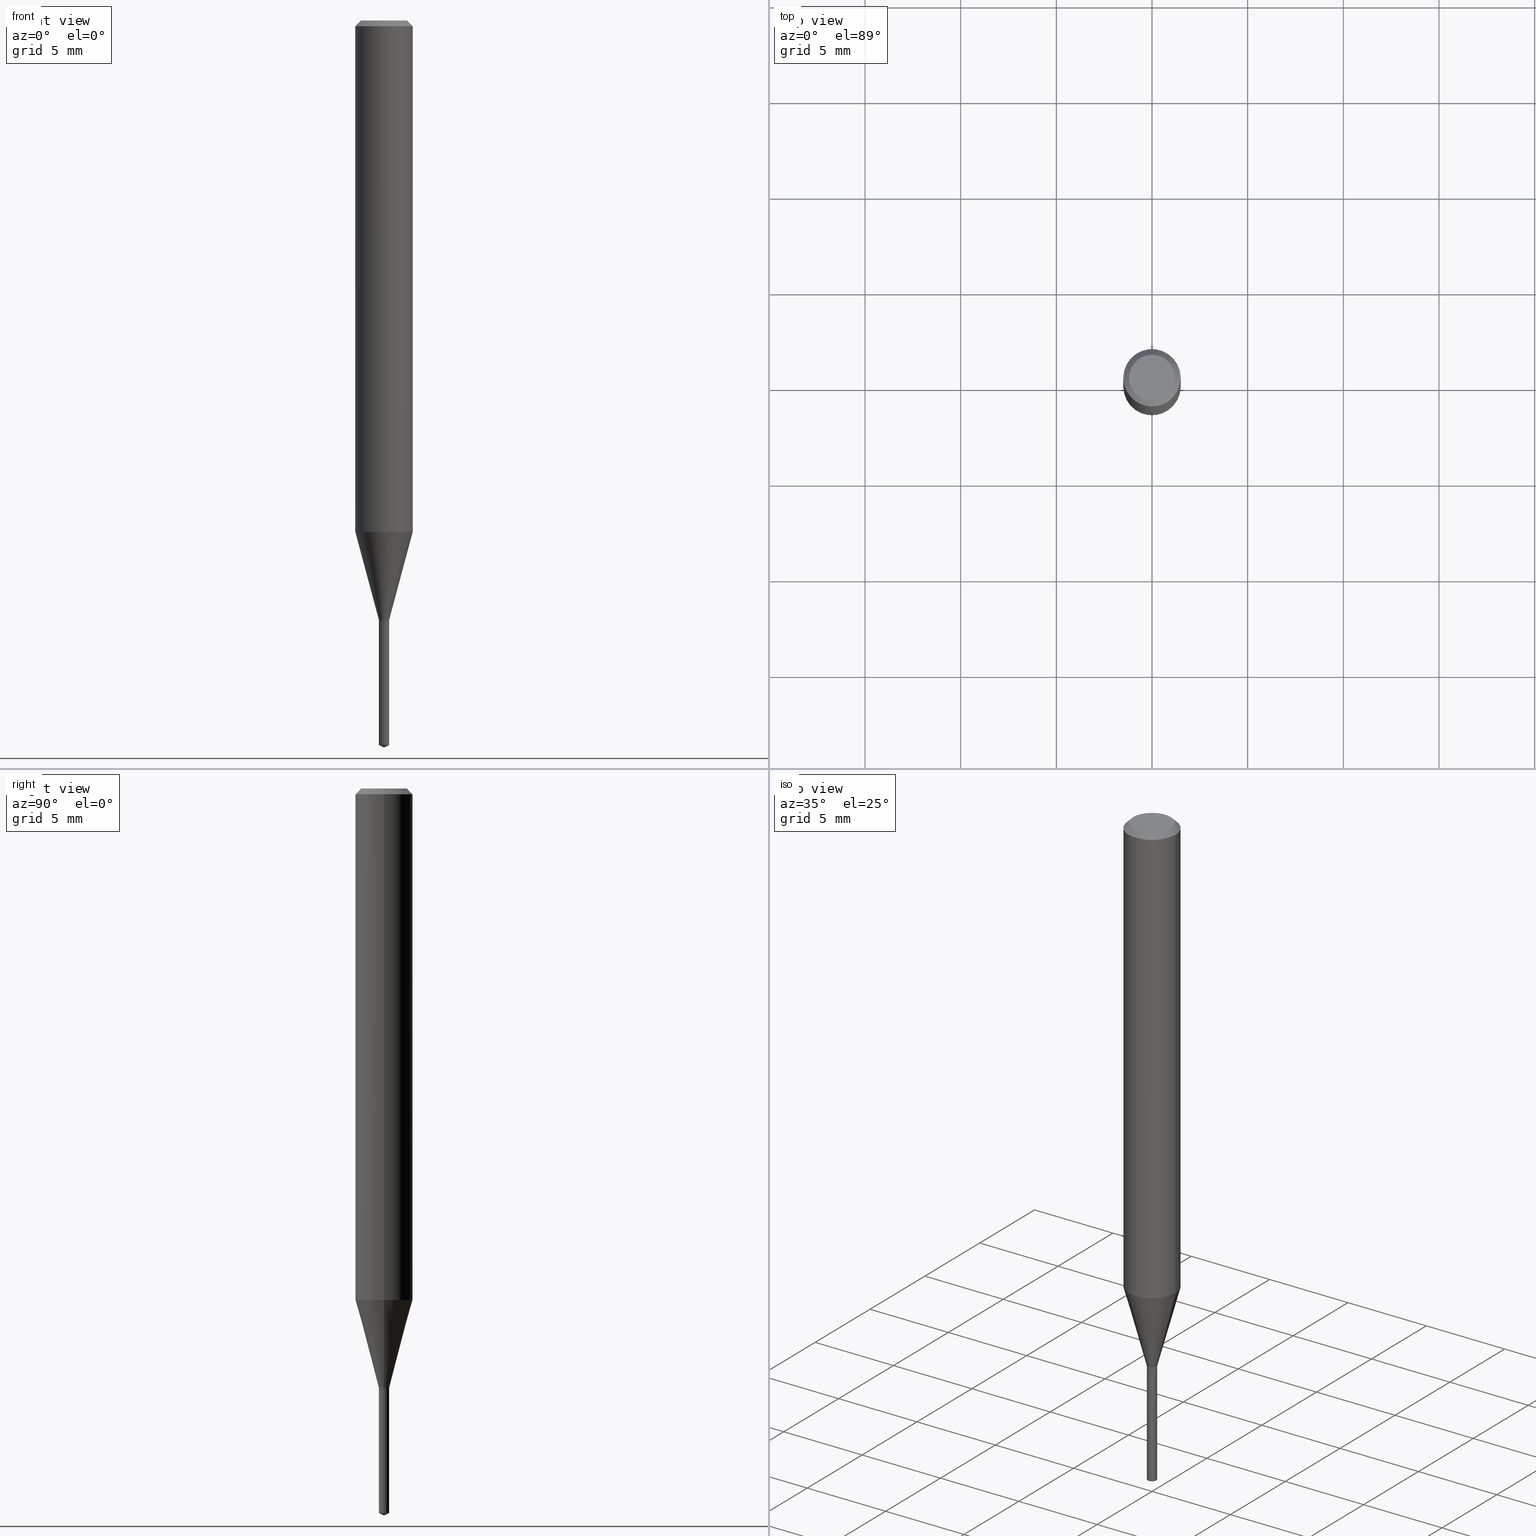
[diagram: canonical four-view strip — front | top / right | iso, engineering-drawing reading convention]
A machine part, canonical four-view strip (front | top / right | iso — engineering-drawing reading convention). The complete STEP part file that produces these views, byte-faithful:
ISO-10303-21;
HEADER;
FILE_DESCRIPTION (( 'STEP AP203' ),
    '1' );
FILE_NAME ('08095.STEP',
    '2024-04-24T11:20:14',
    ( '' ),
    ( '' ),
    'SwSTEP 2.0',
    'SolidWorks 2023',
    '' );
FILE_SCHEMA (( 'CONFIG_CONTROL_DESIGN' ));
ENDSEC;

DATA;
#1 = AXIS2_PLACEMENT_3D ( 'NONE', #56, #165, #210 ) ;
#2 = LINE ( 'NONE', #223, #204 ) ;
#3 = AXIS2_PLACEMENT_3D ( 'NONE', #188, #300, #35 ) ;
#4 = FACE_OUTER_BOUND ( 'NONE', #167, .T. ) ;
#5 = ORIENTED_EDGE ( 'NONE', *, *, #156, .F. ) ;
#6 = DIRECTION ( 'NONE',  ( -1.000000000000000000, 6.982962677686266711E-15, 0.000000000000000000 ) ) ;
#7 = ORIENTED_EDGE ( 'NONE', *, *, #76, .T. ) ;
#8 = FACE_OUTER_BOUND ( 'NONE', #371, .T. ) ;
#9 = VERTEX_POINT ( 'NONE', #342 ) ;
#10 = DIRECTION ( 'NONE',  ( -2.445468806185136877E-29, 3.491481338843145188E-15, 1.000000000000000000 ) ) ;
#11 = ORIENTED_EDGE ( 'NONE', *, *, #384, .T. ) ;
#12 = VERTEX_POINT ( 'NONE', #235 ) ;
#13 = LENGTH_MEASURE_WITH_UNIT ( LENGTH_MEASURE( 0.02539999999999999897 ), #455 );
#14 = EDGE_CURVE ( 'NONE', #134, #233, #60, .T. ) ;
#15 = CARTESIAN_POINT ( 'NONE',  ( 0.000000000000000000, 0.000000000000000000, 0.000000000000000000 ) ) ;
#16 = PERSON_AND_ORGANIZATION_ROLE ( 'design_owner' ) ;
#17 = CC_DESIGN_DATE_AND_TIME_ASSIGNMENT ( #86, #383, ( #387 ) ) ;
#18 = AXIS2_PLACEMENT_3D ( 'NONE', #102, #483, #427 ) ;
#19 = LOCAL_TIME ( 7, 20, 14.00000000000000000, #328 ) ;
#20 = PLANE ( 'NONE',  #356 ) ;
#21 = CARTESIAN_POINT ( 'NONE',  ( -0.01065000000000000148, -4.234386337376470725E-15, -1.235800000000000010 ) ) ;
#22 = CARTESIAN_POINT ( 'NONE',  ( 4.132873053354867254E-48, -5.900647395337818946E-34, -1.690012582823346072E-19 ) ) ;
#23 = LINE ( 'NONE', #398, #284 ) ;
#24 = AXIS2_PLACEMENT_3D ( 'NONE', #318, #315, #131 ) ;
#25 = CARTESIAN_POINT ( 'NONE',  ( 3.023333085086683703E-29, -4.316518379211780118E-15, -1.236299999999999955 ) ) ;
#26 = EDGE_CURVE ( 'NONE', #141, #9, #334, .T. ) ;
#27 = CARTESIAN_POINT ( 'NONE',  ( 3.015507584906892128E-29, -4.305345638927483284E-15, -1.233100000000000085 ) ) ;
#28 = DIRECTION ( 'NONE',  ( -2.445468806185136597E-29, 3.491481338843145583E-15, 1.000000000000000000 ) ) ;
#29 = VERTEX_POINT ( 'NONE', #345 ) ;
#30 = AXIS2_PLACEMENT_3D ( 'NONE', #424, #305, #381 ) ;
#31 = ORIENTED_EDGE ( 'NONE', *, *, #217, .T. ) ;
#32 = CC_DESIGN_APPROVAL ( #449, ( #387 ) ) ;
#33 = DIRECTION ( 'NONE',  ( -2.438088387897960049E-29, 3.491481338843145188E-15, 1.000000000000000000 ) ) ;
#34 = ADVANCED_FACE ( 'NONE', ( #308 ), #453, .T. ) ;
#35 = DIRECTION ( 'NONE',  ( 1.000000000000000000, -6.982962677686266711E-15, 4.876176775795936353E-29 ) ) ;
#36 = ORIENTED_EDGE ( 'NONE', *, *, #220, .F. ) ;
#37 = ORIENTED_EDGE ( 'NONE', *, *, #164, .F. ) ;
#38 = CIRCLE ( 'NONE', #151, 0.01065000000000000148 ) ;
#39 = CARTESIAN_POINT ( 'NONE',  ( -7.436855251732226660E-17, -0.01065000000000520565, -1.491133823440649264 ) ) ;
#40 = CONICAL_SURFACE ( 'NONE', #379, 84.42940631927372408, 1.134464013796313120 ) ;
#41 = EDGE_CURVE ( 'NONE', #466, #12, #248, .T. ) ;
#42 = EDGE_LOOP ( 'NONE', ( #47, #31 ) ) ;
#43 = CARTESIAN_POINT ( 'NONE',  ( 3.023333085086684824E-29, -4.316518379211781696E-15, -1.236300000000000177 ) ) ;
#44 = DIRECTION ( 'NONE',  ( 1.000000000000000000, -6.982962677686291165E-15, 0.000000000000000000 ) ) ;
#45 = ORIENTED_EDGE ( 'NONE', *, *, #61, .F. ) ;
#46 = PERSON_AND_ORGANIZATION ( #488, #268 ) ;
#47 = ORIENTED_EDGE ( 'NONE', *, *, #220, .T. ) ;
#48 = DATE_TIME_ROLE ( 'creation_date' ) ;
#49 = VECTOR ( 'NONE', #415, 39.37007874015748143 ) ;
#50 = AXIS2_PLACEMENT_3D ( 'NONE', #470, #179, #326 ) ;
#51 = CC_DESIGN_APPROVAL ( #57, ( #481 ) ) ;
#52 = ORIENTED_EDGE ( 'NONE', *, *, #292, .F. ) ;
#53 = ORIENTED_EDGE ( 'NONE', *, *, #61, .T. ) ;
#54 = COORDINATED_UNIVERSAL_TIME_OFFSET ( 5, 0, .BEHIND. ) ;
#55 = PRODUCT ( '08095', '08095', '', ( #317 ) ) ;
#56 = CARTESIAN_POINT ( 'NONE',  ( 2.888098660104664204E-31, -4.123439461173780263E-17, -0.01181000000000007218 ) ) ;
#57 = APPROVAL ( #173, 'UNSPECIFIED' ) ;
#58 = CARTESIAN_POINT ( 'NONE',  ( 8.265746106709734507E-48, -1.180129479067563789E-33, -3.380025165646692144E-19 ) ) ;
#59 = PERSON_AND_ORGANIZATION ( #488, #268 ) ;
#60 = CIRCLE ( 'NONE', #274, 0.01065000000000000148 ) ;
#61 = EDGE_CURVE ( 'NONE', #446, #304, #163, .T. ) ;
#62 = AXIS2_PLACEMENT_3D ( 'NONE', #302, #196, #6 ) ;
#63 = CIRCLE ( 'NONE', #311, 0.01065000000000000148 ) ;
#64 = CARTESIAN_POINT ( 'NONE',  ( -9.261903463803131862E-28, 1.322371477110797904E-13, 37.87397874015748300 ) ) ;
#65 = SHAPE_DEFINITION_REPRESENTATION ( #259, #401 ) ;
#66 = EDGE_CURVE ( 'NONE', #9, #446, #199, .T. ) ;
#67 = CARTESIAN_POINT ( 'NONE',  ( 0.05905000000000013710, -4.087018914733182881E-15, -1.052468740913666378 ) ) ;
#68 = DIRECTION ( 'NONE',  ( 2.438088387897960049E-29, -3.491481338843145188E-15, -1.000000000000000000 ) ) ;
#69 = DATE_AND_TIME ( #103, #19 ) ;
#70 = CIRCLE ( 'NONE', #104, 0.01065000000000000148 ) ;
#71 = AXIS2_PLACEMENT_3D ( 'NONE', #344, #437, #457 ) ;
#72 = DIRECTION ( 'NONE',  ( -6.982962677686265922E-15, -1.000000000000000000, 0.000000000000000000 ) ) ;
#73 = CC_DESIGN_PERSON_AND_ORGANIZATION_ASSIGNMENT ( #390, #460, ( #481 ) ) ;
#74 = ADVANCED_FACE ( 'NONE', ( #87 ), #20, .F. ) ;
#75 = CARTESIAN_POINT ( 'NONE',  ( -0.05904999999999999832, -1.438379196147432366E-15, -0.01181000000000007218 ) ) ;
#76 = EDGE_CURVE ( 'NONE', #313, #442, #23, .T. ) ;
#77 = AXIS2_PLACEMENT_3D ( 'NONE', #158, #312, #276 ) ;
#78 = ADVANCED_FACE ( 'NONE', ( #395 ), #443, .T. ) ;
#79 = CARTESIAN_POINT ( 'NONE',  ( -0.05904999999999999832, 3.711095515056362547E-16, -0.01181000000000007218 ) ) ;
#80 = EDGE_LOOP ( 'NONE', ( #11, #261, #45, #263 ) ) ;
#81 = DIRECTION ( 'NONE',  ( 6.982962677686265922E-15, 1.000000000000000000, -3.491503269448233447E-15 ) ) ;
#82 = VERTEX_POINT ( 'NONE', #99 ) ;
#83 = DIRECTION ( 'NONE',  ( -0.2588190451025213501, 5.211531920934551042E-15, 0.9659258262890682012 ) ) ;
#84 = VECTOR ( 'NONE', #396, 39.37007874015748143 ) ;
#85 = ORIENTED_EDGE ( 'NONE', *, *, #217, .F. ) ;
#86 = DATE_AND_TIME ( #162, #374 ) ;
#87 = FACE_OUTER_BOUND ( 'NONE', #42, .T. ) ;
#88 = EDGE_LOOP ( 'NONE', ( #5, #265, #382, #321 ) ) ;
#89 = ORIENTED_EDGE ( 'NONE', *, *, #452, .T. ) ;
#90 = APPROVAL_DATE_TIME ( #169, #57 ) ;
#91 = CONICAL_SURFACE ( 'NONE', #368, 0.01015000000000000104, 0.7853981633972754173 ) ;
#92 = DIRECTION ( 'NONE',  ( -2.445468806185136597E-29, 3.491481338843145583E-15, 1.000000000000000000 ) ) ;
#93 = DIRECTION ( 'NONE',  ( -2.445453492125453683E-29, 3.491503269448233447E-15, 1.000000000000000000 ) ) ;
#94 = ORIENTED_EDGE ( 'NONE', *, *, #459, .F. ) ;
#95 = DIRECTION ( 'NONE',  ( -2.445453492125453683E-29, 3.491503269448233447E-15, 1.000000000000000000 ) ) ;
#96 = COORDINATED_UNIVERSAL_TIME_OFFSET ( 5, 0, .BEHIND. ) ;
#97 = DIRECTION ( 'NONE',  ( -6.982962677686265922E-15, -1.000000000000000000, 0.000000000000000000 ) ) ;
#98 = AXIS2_PLACEMENT_3D ( 'NONE', #15, #255, #172 ) ;
#99 = CARTESIAN_POINT ( 'NONE',  ( 0.04724000000000000421, -3.852183633974369345E-16, -3.380025165621689721E-19 ) ) ;
#100 = PRODUCT_RELATED_PRODUCT_CATEGORY ( 'detail', '', ( #55 ) ) ;
#101 = CARTESIAN_POINT ( 'NONE',  ( 2.573779475389317461E-29, -3.674674968615807172E-15, -1.052468740913666378 ) ) ;
#102 = CARTESIAN_POINT ( 'NONE',  ( 0.000000000000000000, 0.000000000000000000, 0.000000000000000000 ) ) ;
#103 = CALENDAR_DATE ( 2024, 24, 4 ) ;
#104 = AXIS2_PLACEMENT_3D ( 'NONE', #323, #361, #97 ) ;
#105 = VECTOR ( 'NONE', #218, 39.37007874015748143 ) ;
#106 = CC_DESIGN_PERSON_AND_ORGANIZATION_ASSIGNMENT ( #471, #142, ( #422 ) ) ;
#107 = ORIENTED_EDGE ( 'NONE', *, *, #14, .T. ) ;
#108 = DIRECTION ( 'NONE',  ( -2.445468806185136877E-29, 3.491481338843145188E-15, 1.000000000000000000 ) ) ;
#109 = ORIENTED_EDGE ( 'NONE', *, *, #421, .T. ) ;
#110 = ADVANCED_FACE ( 'NONE', ( #433 ), #177, .T. ) ;
#111 = FACE_OUTER_BOUND ( 'NONE', #231, .T. ) ;
#112 = CARTESIAN_POINT ( 'NONE',  ( -2.021227691267602358E-28, -3.759123438479924285E-14, -1.236300000000000177 ) ) ;
#113 = APPLICATION_CONTEXT ( 'configuration controlled 3d designs of mechanical parts and assemblies' ) ;
#114 = AXIS2_PLACEMENT_3D ( 'NONE', #58, #397, #331 ) ;
#115 = ORIENTED_EDGE ( 'NONE', *, *, #464, .T. ) ;
#116 = CARTESIAN_POINT ( 'NONE',  ( 0.000000000000000000, 0.000000000000000000, 0.000000000000000000 ) ) ;
#117 = EDGE_CURVE ( 'NONE', #442, #408, #70, .T. ) ;
#118 = ORIENTED_EDGE ( 'NONE', *, *, #76, .F. ) ;
#119 = PLANE ( 'NONE',  #394 ) ;
#120 = UNCERTAINTY_MEASURE_WITH_UNIT (LENGTH_MEASURE( 1.000000000000000082E-05 ), #288, 'distance_accuracy_value', 'NONE');
#121 = VERTEX_POINT ( 'NONE', #216 ) ;
#122 = VECTOR ( 'NONE', #10, 39.37007874015748143 ) ;
#123 = ORIENTED_EDGE ( 'NONE', *, *, #364, .T. ) ;
#124 = AXIS2_PLACEMENT_3D ( 'NONE', #234, #463, #240 ) ;
#125 = DIRECTION ( 'NONE',  ( -2.445468806185136597E-29, 3.491481338843145583E-15, 1.000000000000000000 ) ) ;
#126 = CARTESIAN_POINT ( 'NONE',  ( 3.015507584906892128E-29, -4.305345638927483284E-15, -1.233100000000000085 ) ) ;
#127 =( NAMED_UNIT ( * ) SI_UNIT ( $, .STERADIAN. ) SOLID_ANGLE_UNIT ( ) );
#128 = EDGE_LOOP ( 'NONE', ( #462, #7, #270 ) ) ;
#129 = ORIENTED_EDGE ( 'NONE', *, *, #26, .F. ) ;
#130 = CALENDAR_DATE ( 2024, 24, 4 ) ;
#131 = DIRECTION ( 'NONE',  ( 1.000000000000000000, -6.982962677686242256E-15, 0.000000000000000000 ) ) ;
#132 = EDGE_CURVE ( 'NONE', #208, #121, #468, .T. ) ;
#133 = ORIENTED_EDGE ( 'NONE', *, *, #251, .T. ) ;
#134 = VERTEX_POINT ( 'NONE', #430 ) ;
#135 = SECURITY_CLASSIFICATION_LEVEL ( 'unclassified' ) ;
#136 = AXIS2_PLACEMENT_3D ( 'NONE', #64, #178, #357 ) ;
#137 = VECTOR ( 'NONE', #212, 39.37007874015748143 ) ;
#138 = DIRECTION ( 'NONE',  ( 1.000000000000000000, -6.982962677686242256E-15, 0.000000000000000000 ) ) ;
#139 = LOCAL_TIME ( 7, 20, 14.00000000000000000, #54 ) ;
#140 = FACE_OUTER_BOUND ( 'NONE', #376, .T. ) ;
#141 = VERTEX_POINT ( 'NONE', #431 ) ;
#142 = PERSON_AND_ORGANIZATION_ROLE ( 'creator' ) ;
#143 = DIRECTION ( 'NONE',  ( 6.439704144417020887E-15, 0.9063077870366510469, 0.4226182617406973319 ) ) ;
#144 = EDGE_CURVE ( 'NONE', #408, #442, #38, .T. ) ;
#145 = DIRECTION ( 'NONE',  ( -1.000000000000000000, 6.982962677686265922E-15, -4.876176775795935793E-29 ) ) ;
#146 = AXIS2_PLACEMENT_3D ( 'NONE', #27, #28, #484 ) ;
#147 = DIRECTION ( 'NONE',  ( 1.000000000000000000, -6.982962677686291165E-15, 0.000000000000000000 ) ) ;
#148 = MANIFOLD_SOLID_BREP ( 'Body-Move/Copy2[1]', #428 ) ;
#149 = CARTESIAN_POINT ( 'NONE',  ( 3.022110350683592022E-29, -4.314772638542359403E-15, -1.235800000000000010 ) ) ;
#150 = ORIENTED_EDGE ( 'NONE', *, *, #241, .F. ) ;
#151 = AXIS2_PLACEMENT_3D ( 'NONE', #475, #252, #72 ) ;
#152 = FACE_OUTER_BOUND ( 'NONE', #239, .T. ) ;
#153 = ORIENTED_EDGE ( 'NONE', *, *, #384, .F. ) ;
#154 = DESIGN_CONTEXT ( 'detailed design', #477, 'design' ) ;
#155 = DIRECTION ( 'NONE',  ( -2.445453492125453683E-29, 3.491503269448233447E-15, 1.000000000000000000 ) ) ;
#156 = EDGE_CURVE ( 'NONE', #141, #304, #479, .T. ) ;
#157 = VECTOR ( 'NONE', #441, 39.37007874015748143 ) ;
#158 = CARTESIAN_POINT ( 'NONE',  ( 3.022110350683592022E-29, -4.314772638542359403E-15, -1.235800000000000010 ) ) ;
#159 = CARTESIAN_POINT ( 'NONE',  ( -0.01065000000000000148, -4.234386337376470725E-15, -1.233100000000000085 ) ) ;
#160 = DIRECTION ( 'NONE',  ( -2.445468806185136597E-29, 3.491481338843145583E-15, 1.000000000000000000 ) ) ;
#161 = ORIENTED_EDGE ( 'NONE', *, *, #348, .T. ) ;
#162 = CALENDAR_DATE ( 2024, 24, 4 ) ;
#163 = CIRCLE ( 'NONE', #77, 0.01065000000000000148 ) ;
#164 = EDGE_CURVE ( 'NONE', #408, #208, #289, .T. ) ;
#165 = DIRECTION ( 'NONE',  ( -2.445468806185136597E-29, 3.491481338843145583E-15, 1.000000000000000000 ) ) ;
#166 = VECTOR ( 'NONE', #271, 39.37007874015747433 ) ;
#167 = EDGE_LOOP ( 'NONE', ( #53, #309, #272, #150 ) ) ;
#168 = CC_DESIGN_PERSON_AND_ORGANIZATION_ASSIGNMENT ( #279, #392, ( #387 ) ) ;
#169 = DATE_AND_TIME ( #130, #347 ) ;
#170 = ORIENTED_EDGE ( 'NONE', *, *, #364, .F. ) ;
#171 = ORIENTED_EDGE ( 'NONE', *, *, #348, .F. ) ;
#172 = DIRECTION ( 'NONE',  ( 1.000000000000000000, -6.982962677686266711E-15, 4.876176775795936353E-29 ) ) ;
#173 = APPROVAL_STATUS ( 'not_yet_approved' ) ;
#174 = AXIS2_PLACEMENT_3D ( 'NONE', #225, #404, #186 ) ;
#175 = FACE_OUTER_BOUND ( 'NONE', #80, .T. ) ;
#176 = EDGE_CURVE ( 'NONE', #313, #408, #219, .T. ) ;
#177 = CYLINDRICAL_SURFACE ( 'NONE', #190, 0.01065000000000000148 ) ;
#178 = DIRECTION ( 'NONE',  ( -2.445453492125453683E-29, 3.491503269448233447E-15, 1.000000000000000000 ) ) ;
#179 = DIRECTION ( 'NONE',  ( -2.445468806185136597E-29, 3.491481338843145583E-15, 1.000000000000000000 ) ) ;
#180 = AXIS2_PLACEMENT_3D ( 'NONE', #448, #260, #44 ) ;
#181 = CYLINDRICAL_SURFACE ( 'NONE', #18, 0.01065000000000000148 ) ;
#182 = EDGE_CURVE ( 'NONE', #304, #446, #63, .T. ) ;
#183 = LINE ( 'NONE', #332, #137 ) ;
#184 = CIRCLE ( 'NONE', #373, 0.01065000000000000148 ) ;
#185 = PLANE ( 'NONE',  #429 ) ;
#186 = DIRECTION ( 'NONE',  ( 1.000000000000000000, -6.982962677686266711E-15, 0.000000000000000000 ) ) ;
#187 = EDGE_CURVE ( 'NONE', #203, #29, #478, .T. ) ;
#188 = CARTESIAN_POINT ( 'NONE',  ( 0.000000000000000000, 0.000000000000000000, 0.000000000000000000 ) ) ;
#189 = DIRECTION ( 'NONE',  ( 1.000000000000000000, -6.982962677686266711E-15, 4.876176775795935793E-29 ) ) ;
#190 = AXIS2_PLACEMENT_3D ( 'NONE', #296, #95, #257 ) ;
#191 = ORIENTED_EDGE ( 'NONE', *, *, #117, .F. ) ;
#192 = CC_DESIGN_SECURITY_CLASSIFICATION ( #387, ( #422 ) ) ;
#193 = DIRECTION ( 'NONE',  ( 1.000000000000000000, -6.982962677686265922E-15, 4.876176775795935793E-29 ) ) ;
#194 = APPROVAL ( #467, 'UNSPECIFIED' ) ;
#195 = ORIENTED_EDGE ( 'NONE', *, *, #117, .T. ) ;
#196 = DIRECTION ( 'NONE',  ( 2.445468806185136597E-29, -3.491481338843145583E-15, -1.000000000000000000 ) ) ;
#197 = CARTESIAN_POINT ( 'NONE',  ( -0.01065000000000000148, 7.567280135845068031E-17, -5.238665871121474943E-31 ) ) ;
#198 = ADVANCED_FACE ( 'NONE', ( #294 ), #181, .T. ) ;
#199 = LINE ( 'NONE', #458, #49 ) ;
#200 = APPROVAL_STATUS ( 'not_yet_approved' ) ;
#201 = LINE ( 'NONE', #346, #122 ) ;
#202 = ADVANCED_FACE ( 'NONE', ( #291 ), #247, .T. ) ;
#203 = VERTEX_POINT ( 'NONE', #67 ) ;
#204 = VECTOR ( 'NONE', #155, 39.37007874015748143 ) ;
#205 = ORIENTED_EDGE ( 'NONE', *, *, #187, .F. ) ;
#206 = CALENDAR_DATE ( 2024, 24, 4 ) ;
#207 = ORIENTED_EDGE ( 'NONE', *, *, #474, .T. ) ;
#208 = VERTEX_POINT ( 'NONE', #319 ) ;
#209 = APPROVAL_ROLE ( '' ) ;
#210 = DIRECTION ( 'NONE',  ( 1.000000000000000000, -6.982962677686266711E-15, 0.000000000000000000 ) ) ;
#211 = ORIENTED_EDGE ( 'NONE', *, *, #482, .T. ) ;
#212 = DIRECTION ( 'NONE',  ( 0.7071067811865453523, -7.319954787623248157E-15, -0.7071067811865496822 ) ) ;
#213 = CARTESIAN_POINT ( 'NONE',  ( 3.015507584906892128E-29, -4.305345638927483284E-15, -1.233100000000000085 ) ) ;
#214 = CALENDAR_DATE ( 2024, 24, 4 ) ;
#215 = CONICAL_SURFACE ( 'NONE', #71, 0.05904999999999999832, 0.7853981633974452814 ) ;
#216 = CARTESIAN_POINT ( 'NONE',  ( -7.436855251732849120E-17, -0.01065000000000431574, -1.236299999999999955 ) ) ;
#217 = EDGE_CURVE ( 'NONE', #82, #314, #267, .T. ) ;
#218 = DIRECTION ( 'NONE',  ( -0.7071067811864253372, 7.493145998869912398E-15, 0.7071067811866698083 ) ) ;
#219 = LINE ( 'NONE', #365, #286 ) ;
#220 = EDGE_CURVE ( 'NONE', #314, #82, #329, .T. ) ;
#221 = DIRECTION ( 'NONE',  ( 1.000000000000000000, -6.982962677686291165E-15, 0.000000000000000000 ) ) ;
#222 = LINE ( 'NONE', #197, #358 ) ;
#223 = CARTESIAN_POINT ( 'NONE',  ( -7.436855251732849120E-17, -0.01065000000000431574, -1.236299999999999955 ) ) ;
#224 = CIRCLE ( 'NONE', #180, 0.01065000000000000148 ) ;
#225 = CARTESIAN_POINT ( 'NONE',  ( 2.888098660104664204E-31, -4.123439461173780263E-17, -0.01181000000000007218 ) ) ;
#226 = ORIENTED_EDGE ( 'NONE', *, *, #253, .F. ) ;
#227 = DIRECTION ( 'NONE',  ( -6.982962677686265922E-15, -1.000000000000000000, 0.000000000000000000 ) ) ;
#228 = CYLINDRICAL_SURFACE ( 'NONE', #299, 0.01065000000000000148 ) ;
#229 = DIRECTION ( 'NONE',  ( -2.445453492125453683E-29, 3.491503269448233447E-15, 1.000000000000000000 ) ) ;
#230 = CIRCLE ( 'NONE', #275, 0.01015000000000000104 ) ;
#231 = EDGE_LOOP ( 'NONE', ( #118, #349, #191 ) ) ;
#232 = ADVANCED_FACE ( 'NONE', ( #140 ), #249, .T. ) ;
#233 = VERTEX_POINT ( 'NONE', #159 ) ;
#234 = CARTESIAN_POINT ( 'NONE',  ( 0.000000000000000000, 0.000000000000000000, 0.000000000000000000 ) ) ;
#235 = CARTESIAN_POINT ( 'NONE',  ( 0.05904999999999999832, -4.535783407291118600E-16, -0.01181000000000007218 ) ) ;
#236 = AXIS2_PLACEMENT_3D ( 'NONE', #423, #93, #242 ) ;
#237 = ORIENTED_EDGE ( 'NONE', *, *, #41, .T. ) ;
#238 = CONICAL_SURFACE ( 'NONE', #24, 0.01015000000000000104, 0.7853981633972754173 ) ;
#239 = EDGE_LOOP ( 'NONE', ( #52, #36, #402, #237 ) ) ;
#240 = DIRECTION ( 'NONE',  ( 1.000000000000000000, 0.000000000000000000, 0.000000000000000000 ) ) ;
#241 = EDGE_CURVE ( 'NONE', #446, #134, #434, .T. ) ;
#242 = DIRECTION ( 'NONE',  ( -6.982962677686265922E-15, -1.000000000000000000, 0.000000000000000000 ) ) ;
#243 = APPLICATION_PROTOCOL_DEFINITION ( 'international standard', 'config_control_design', 1994, #477 ) ;
#244 = CARTESIAN_POINT ( 'NONE',  ( 3.023333085086684824E-29, -4.316518379211781696E-15, -1.236300000000000177 ) ) ;
#245 = CARTESIAN_POINT ( 'NONE',  ( -0.01015000000000000104, -4.244398291532130792E-15, -1.236300000000000177 ) ) ;
#246 = APPLICATION_PROTOCOL_DEFINITION ( 'international standard', 'config_control_design', 1994, #113 ) ;
#247 = CYLINDRICAL_SURFACE ( 'NONE', #98, 0.05905000000000006771 ) ;
#248 = CIRCLE ( 'NONE', #1, 0.05904999999999999832 ) ;
#249 = CONICAL_SURFACE ( 'NONE', #420, 0.01065000000000000148, 0.2617993877991500740 ) ;
#250 = CC_DESIGN_APPROVAL ( #194, ( #422 ) ) ;
#251 = EDGE_CURVE ( 'NONE', #233, #134, #224, .T. ) ;
#252 = DIRECTION ( 'NONE',  ( -2.445453492125453683E-29, 3.491503269448233447E-15, 1.000000000000000000 ) ) ;
#253 = EDGE_CURVE ( 'NONE', #304, #233, #222, .T. ) ;
#254 = ADVANCED_FACE ( 'NONE', ( #152 ), #215, .T. ) ;
#255 = DIRECTION ( 'NONE',  ( -2.445468806185136597E-29, 3.491481338843145583E-15, 1.000000000000000000 ) ) ;
#256 = APPROVAL_DATE_TIME ( #69, #449 ) ;
#257 = DIRECTION ( 'NONE',  ( -6.982962677686265922E-15, -1.000000000000000000, 0.000000000000000000 ) ) ;
#258 = AXIS2_PLACEMENT_3D ( 'NONE', #25, #473, #425 ) ;
#259 = PRODUCT_DEFINITION_SHAPE ( 'NONE', 'NONE',  #481 ) ;
#260 = DIRECTION ( 'NONE',  ( -2.445468806185136597E-29, 3.491481338843145583E-15, 1.000000000000000000 ) ) ;
#261 = ORIENTED_EDGE ( 'NONE', *, *, #156, .T. ) ;
#262 = ADVANCED_FACE ( 'NONE', ( #4 ), #228, .T. ) ;
#263 = ORIENTED_EDGE ( 'NONE', *, *, #66, .F. ) ;
#264 = CARTESIAN_POINT ( 'NONE',  ( 0.01065000000000000148, -4.389141191059717822E-15, -1.235800000000000010 ) ) ;
#265 = ORIENTED_EDGE ( 'NONE', *, *, #26, .T. ) ;
#266 = CARTESIAN_POINT ( 'NONE',  ( 7.567280135848714047E-17, 0.01064999999999479557, -1.491133823440649264 ) ) ;
#267 = CIRCLE ( 'NONE', #50, 0.04724000000000000421 ) ;
#268 = ORGANIZATION ( 'UNSPECIFIED', 'UNSPECIFIED', '' ) ;
#269 = CARTESIAN_POINT ( 'NONE',  ( 0.05905000000000006771, -4.123439461173745257E-16, 2.879382386107503723E-30 ) ) ;
#270 = ORIENTED_EDGE ( 'NONE', *, *, #144, .F. ) ;
#271 = DIRECTION ( 'NONE',  ( 0.2588190451025213501, 1.565188264969621968E-15, 0.9659258262890682012 ) ) ;
#272 = ORIENTED_EDGE ( 'NONE', *, *, #14, .F. ) ;
#273 = LINE ( 'NONE', #338, #295 ) ;
#274 = AXIS2_PLACEMENT_3D ( 'NONE', #126, #160, #278 ) ;
#275 = AXIS2_PLACEMENT_3D ( 'NONE', #43, #411, #375 ) ;
#276 = DIRECTION ( 'NONE',  ( 1.000000000000000000, -6.982962677686291165E-15, 0.000000000000000000 ) ) ;
#277 = DATE_AND_TIME ( #214, #139 ) ;
#278 = DIRECTION ( 'NONE',  ( 1.000000000000000000, -6.982962677686291165E-15, 0.000000000000000000 ) ) ;
#279 = PERSON_AND_ORGANIZATION ( #488, #268 ) ;
#280 = FACE_OUTER_BOUND ( 'NONE', #88, .T. ) ;
#281 = ORIENTED_EDGE ( 'NONE', *, *, #241, .T. ) ;
#282 = PERSON_AND_ORGANIZATION_ROLE ( 'design_supplier' ) ;
#283 = ADVANCED_FACE ( 'NONE', ( #340 ), #399, .T. ) ;
#284 = VECTOR ( 'NONE', #363, 39.37007874015748143 ) ;
#285 = DIRECTION ( 'NONE',  ( 1.000000000000000000, -6.982962677686242256E-15, 0.000000000000000000 ) ) ;
#286 = VECTOR ( 'NONE', #143, 39.37007874015748854 ) ;
#287 = EDGE_LOOP ( 'NONE', ( #153, #129 ) ) ;
#288 =( CONVERSION_BASED_UNIT ( 'INCH', #13 ) LENGTH_UNIT ( ) NAMED_UNIT ( #472 ) );
#289 = LINE ( 'NONE', #353, #84 ) ;
#290 = COORDINATED_UNIVERSAL_TIME_OFFSET ( 5, 0, .BEHIND. ) ;
#291 = FACE_OUTER_BOUND ( 'NONE', #454, .T. ) ;
#292 = EDGE_CURVE ( 'NONE', #82, #12, #183, .T. ) ;
#293 = CARTESIAN_POINT ( 'NONE',  ( 3.658642969568890811E-29, -5.223638041421501490E-15, -1.496099999999999985 ) ) ;
#294 = FACE_OUTER_BOUND ( 'NONE', #350, .T. ) ;
#295 = VECTOR ( 'NONE', #83, 39.37007874015747433 ) ;
#296 = CARTESIAN_POINT ( 'NONE',  ( 3.023333085086683703E-29, -4.316518379211780118E-15, -1.236299999999999955 ) ) ;
#297 = DIRECTION ( 'NONE',  ( -2.445468806185136597E-29, 3.491481338843145583E-15, 1.000000000000000000 ) ) ;
#298 = ORIENTED_EDGE ( 'NONE', *, *, #367, .F. ) ;
#299 = AXIS2_PLACEMENT_3D ( 'NONE', #116, #125, #189 ) ;
#300 = DIRECTION ( 'NONE',  ( -2.445468806185136597E-29, 3.491481338843145583E-15, 1.000000000000000000 ) ) ;
#301 = ORIENTED_EDGE ( 'NONE', *, *, #144, .T. ) ;
#302 = CARTESIAN_POINT ( 'NONE',  ( 2.888098660104664204E-31, -4.123439461173780263E-17, -0.01181000000000007218 ) ) ;
#303 = CARTESIAN_POINT ( 'NONE',  ( 0.01065000000000000148, -4.379714191444842492E-15, -1.233100000000000085 ) ) ;
#304 = VERTEX_POINT ( 'NONE', #21 ) ;
#305 = DIRECTION ( 'NONE',  ( -2.445468806185136597E-29, 3.491481338843145583E-15, 1.000000000000000000 ) ) ;
#306 = ORIENTED_EDGE ( 'NONE', *, *, #464, .F. ) ;
#307 = LINE ( 'NONE', #303, #166 ) ;
#308 = FACE_OUTER_BOUND ( 'NONE', #351, .T. ) ;
#309 = ORIENTED_EDGE ( 'NONE', *, *, #253, .T. ) ;
#310 = APPROVAL_ROLE ( '' ) ;
#311 = AXIS2_PLACEMENT_3D ( 'NONE', #149, #297, #147 ) ;
#312 = DIRECTION ( 'NONE',  ( -2.445468806185136597E-29, 3.491481338843145583E-15, 1.000000000000000000 ) ) ;
#313 = VERTEX_POINT ( 'NONE', #293 ) ;
#314 = VERTEX_POINT ( 'NONE', #324 ) ;
#315 = DIRECTION ( 'NONE',  ( -2.445468806185136597E-29, 3.491481338843145583E-15, 1.000000000000000000 ) ) ;
#316 = CARTESIAN_POINT ( 'NONE',  ( 3.023333085086684824E-29, -4.316518379211781696E-15, -1.236300000000000177 ) ) ;
#317 = MECHANICAL_CONTEXT ( 'NONE', #113, 'mechanical' ) ;
#318 = CARTESIAN_POINT ( 'NONE',  ( 3.023333085086684824E-29, -4.316518379211781696E-15, -1.236300000000000177 ) ) ;
#319 = CARTESIAN_POINT ( 'NONE',  ( 7.567280135848718978E-17, 0.01064999999999568549, -1.236299999999999955 ) ) ;
#320 = CIRCLE ( 'NONE', #174, 0.05904999999999999832 ) ;
#321 = ORIENTED_EDGE ( 'NONE', *, *, #182, .F. ) ;
#322 = COORDINATED_UNIVERSAL_TIME_OFFSET ( 5, 0, .BEHIND. ) ;
#323 = CARTESIAN_POINT ( 'NONE',  ( 3.646517348531301353E-29, -5.206271506920801181E-15, -1.491133823440649264 ) ) ;
#324 = CARTESIAN_POINT ( 'NONE',  ( -0.04724000000000000421, 3.504923541997677355E-16, -3.380025165670481712E-19 ) ) ;
#325 = DIRECTION ( 'NONE',  ( 1.000000000000000000, -6.982962677686264344E-15, 0.000000000000000000 ) ) ;
#326 = DIRECTION ( 'NONE',  ( 1.000000000000000000, -6.982962677686266711E-15, 4.876185090822587894E-29 ) ) ;
#327 = CC_DESIGN_PERSON_AND_ORGANIZATION_ASSIGNMENT ( #59, #282, ( #422 ) ) ;
#328 = COORDINATED_UNIVERSAL_TIME_OFFSET ( 5, 0, .BEHIND. ) ;
#329 = CIRCLE ( 'NONE', #114, 0.04724000000000000421 ) ;
#330 = APPROVAL_PERSON_ORGANIZATION ( #46, #449, #416 ) ;
#331 = DIRECTION ( 'NONE',  ( 1.000000000000000000, -6.982962677686266711E-15, 4.876185090822587894E-29 ) ) ;
#332 = CARTESIAN_POINT ( 'NONE',  ( 0.05904999999999999832, -4.463468013801466955E-16, -0.01181000000000007218 ) ) ;
#333 = ORIENTED_EDGE ( 'NONE', *, *, #187, .T. ) ;
#334 = CIRCLE ( 'NONE', #378, 0.01015000000000000104 ) ;
#335 = VECTOR ( 'NONE', #377, 39.37007874015748143 ) ;
#336 = CARTESIAN_POINT ( 'NONE',  ( 3.023333085086683703E-29, -4.316518379211780118E-15, -1.236299999999999955 ) ) ;
#337 = CARTESIAN_POINT ( 'NONE',  ( 3.023333085086683703E-29, -4.316518379211780118E-15, -1.236299999999999955 ) ) ;
#338 = CARTESIAN_POINT ( 'NONE',  ( -0.01065000000000000148, -4.229672837569032271E-15, -1.233100000000000085 ) ) ;
#339 = CLOSED_SHELL ( 'NONE', ( #341, #417, #432, #283, #262, #198, #232, #202, #254, #74, #461, #360 ) ) ;
#340 = FACE_OUTER_BOUND ( 'NONE', #486, .T. ) ;
#341 = ADVANCED_FACE ( 'NONE', ( #175 ), #238, .T. ) ;
#342 = CARTESIAN_POINT ( 'NONE',  ( 0.01015000000000000104, -4.387395450390297107E-15, -1.236300000000000177 ) ) ;
#343 = FACE_OUTER_BOUND ( 'NONE', #413, .T. ) ;
#344 = CARTESIAN_POINT ( 'NONE',  ( 2.888098660104664204E-31, -4.123439461173780263E-17, -0.01181000000000007218 ) ) ;
#345 = CARTESIAN_POINT ( 'NONE',  ( -0.05905000000000013710, -3.255099483149467285E-15, -1.052468740913666378 ) ) ;
#346 = CARTESIAN_POINT ( 'NONE',  ( -0.05905000000000006771, 4.195754854663396409E-16, -2.904631170795525045E-30 ) ) ;
#347 = LOCAL_TIME ( 7, 20, 14.00000000000000000, #322 ) ;
#348 = EDGE_CURVE ( 'NONE', #29, #466, #201, .T. ) ;
#349 = ORIENTED_EDGE ( 'NONE', *, *, #176, .T. ) ;
#350 = EDGE_LOOP ( 'NONE', ( #226, #439, #281, #388 ) ) ;
#351 = EDGE_LOOP ( 'NONE', ( #37, #301, #207, #354 ) ) ;
#352 = APPROVAL_DATE_TIME ( #426, #194 ) ;
#353 = CARTESIAN_POINT ( 'NONE',  ( 7.567280135848090354E-17, 0.01064999999999568549, -1.236299999999999955 ) ) ;
#354 = ORIENTED_EDGE ( 'NONE', *, *, #132, .F. ) ;
#355 = PERSON_AND_ORGANIZATION ( #488, #268 ) ;
#356 = AXIS2_PLACEMENT_3D ( 'NONE', #22, #68, #145 ) ;
#357 = DIRECTION ( 'NONE',  ( -6.982962677686266711E-15, -1.000000000000000000, 3.520397390770479508E-15 ) ) ;
#358 = VECTOR ( 'NONE', #108, 39.37007874015748143 ) ;
#359 =( NAMED_UNIT ( * ) PLANE_ANGLE_UNIT ( ) SI_UNIT ( $, .RADIAN. ) );
#360 = ADVANCED_FACE ( 'NONE', ( #280 ), #91, .T. ) ;
#361 = DIRECTION ( 'NONE',  ( -2.445453492125453683E-29, 3.491503269448233447E-15, 1.000000000000000000 ) ) ;
#362 = CC_DESIGN_PERSON_AND_ORGANIZATION_ASSIGNMENT ( #419, #16, ( #55 ) ) ;
#363 = DIRECTION ( 'NONE',  ( -6.328713451373366223E-15, -0.9063077870366479383, 0.4226182617407036046 ) ) ;
#364 = EDGE_CURVE ( 'NONE', #29, #203, #469, .T. ) ;
#365 = CARTESIAN_POINT ( 'NONE',  ( 3.658681167148986974E-29, -5.223583815807360950E-15, -1.496099999999999985 ) ) ;
#366 = APPROVAL_PERSON_ORGANIZATION ( #355, #57, #310 ) ;
#367 = EDGE_CURVE ( 'NONE', #203, #12, #444, .T. ) ;
#368 = AXIS2_PLACEMENT_3D ( 'NONE', #244, #92, #138 ) ;
#369 = DIRECTION ( 'NONE',  ( -2.445468806185136877E-29, 3.491481338843145188E-15, 1.000000000000000000 ) ) ;
#370 = DIRECTION ( 'NONE',  ( -2.445468806185136597E-29, 3.491481338843145583E-15, 1.000000000000000000 ) ) ;
#371 = EDGE_LOOP ( 'NONE', ( #333, #161, #450, #298 ) ) ;
#372 = LINE ( 'NONE', #79, #335 ) ;
#373 = AXIS2_PLACEMENT_3D ( 'NONE', #337, #489, #227 ) ;
#374 = LOCAL_TIME ( 7, 20, 14.00000000000000000, #96 ) ;
#375 = DIRECTION ( 'NONE',  ( 1.000000000000000000, -6.982962677686242256E-15, 0.000000000000000000 ) ) ;
#376 = EDGE_LOOP ( 'NONE', ( #435, #133, #211, #170 ) ) ;
#377 = DIRECTION ( 'NONE',  ( -0.7071067811865453523, 2.468850131082234184E-15, -0.7071067811865496822 ) ) ;
#378 = AXIS2_PLACEMENT_3D ( 'NONE', #316, #465, #285 ) ;
#379 = AXIS2_PLACEMENT_3D ( 'NONE', #447, #229, #451 ) ;
#380 = ORIENTED_EDGE ( 'NONE', *, *, #164, .T. ) ;
#381 = DIRECTION ( 'NONE',  ( 1.000000000000000000, -6.982962677686264344E-15, 0.000000000000000000 ) ) ;
#382 = ORIENTED_EDGE ( 'NONE', *, *, #66, .T. ) ;
#383 = DATE_TIME_ROLE ( 'classification_date' ) ;
#384 = EDGE_CURVE ( 'NONE', #9, #141, #230, .T. ) ;
#385 = ORIENTED_EDGE ( 'NONE', *, *, #482, .F. ) ;
#386 = VECTOR ( 'NONE', #369, 39.37007874015748143 ) ;
#387 = SECURITY_CLASSIFICATION ( '', '', #135 ) ;
#388 = ORIENTED_EDGE ( 'NONE', *, *, #251, .F. ) ;
#389 = EDGE_LOOP ( 'NONE', ( #115, #403 ) ) ;
#390 = PERSON_AND_ORGANIZATION ( #488, #268 ) ;
#391 = ORIENTED_EDGE ( 'NONE', *, *, #367, .T. ) ;
#392 = PERSON_AND_ORGANIZATION_ROLE ( 'classification_officer' ) ;
#393 = DIRECTION ( 'NONE',  ( -2.445468806185136597E-29, 3.491481338843145583E-15, 1.000000000000000000 ) ) ;
#394 = AXIS2_PLACEMENT_3D ( 'NONE', #112, #33, #193 ) ;
#395 = FACE_OUTER_BOUND ( 'NONE', #128, .T. ) ;
#396 = DIRECTION ( 'NONE',  ( -2.445453492125453683E-29, 3.491503269448233447E-15, 1.000000000000000000 ) ) ;
#397 = DIRECTION ( 'NONE',  ( -2.445468806185136597E-29, 3.491481338843145583E-15, 1.000000000000000000 ) ) ;
#398 = CARTESIAN_POINT ( 'NONE',  ( 3.658642969568891371E-29, -5.223638041421501490E-15, -1.496099999999999985 ) ) ;
#399 = CONICAL_SURFACE ( 'NONE', #146, 0.01065000000000000148, 0.2617993877991500740 ) ;
#400 = LOCAL_TIME ( 7, 20, 14.00000000000000000, #290 ) ;
#401 = ADVANCED_BREP_SHAPE_REPRESENTATION ( '08095', ( #148, #476, #124 ), #445 ) ;
#402 = ORIENTED_EDGE ( 'NONE', *, *, #459, .T. ) ;
#403 = ORIENTED_EDGE ( 'NONE', *, *, #132, .T. ) ;
#404 = DIRECTION ( 'NONE',  ( -2.445468806185136597E-29, 3.491481338843145583E-15, 1.000000000000000000 ) ) ;
#405 = FACE_OUTER_BOUND ( 'NONE', #287, .T. ) ;
#406 = EDGE_LOOP ( 'NONE', ( #195, #380, #306, #490 ) ) ;
#407 = CYLINDRICAL_SURFACE ( 'NONE', #3, 0.05905000000000006771 ) ;
#408 = VERTEX_POINT ( 'NONE', #266 ) ;
#409 = FACE_OUTER_BOUND ( 'NONE', #389, .T. ) ;
#410 = ORIENTED_EDGE ( 'NONE', *, *, #41, .F. ) ;
#411 = DIRECTION ( 'NONE',  ( -2.445468806185136597E-29, 3.491481338843145583E-15, 1.000000000000000000 ) ) ;
#412 = CARTESIAN_POINT ( 'NONE',  ( 0.01065000000000000148, -7.436855251735875141E-17, 5.193128266222672607E-31 ) ) ;
#413 = EDGE_LOOP ( 'NONE', ( #85, #418, #89, #94 ) ) ;
#414 = PERSON_AND_ORGANIZATION ( #488, #268 ) ;
#415 = DIRECTION ( 'NONE',  ( 0.7071067811864253372, -2.468850131080976739E-15, 0.7071067811866698083 ) ) ;
#416 = APPROVAL_ROLE ( '' ) ;
#417 = ADVANCED_FACE ( 'NONE', ( #343 ), #456, .T. ) ;
#418 = ORIENTED_EDGE ( 'NONE', *, *, #292, .T. ) ;
#419 = PERSON_AND_ORGANIZATION ( #488, #268 ) ;
#420 = AXIS2_PLACEMENT_3D ( 'NONE', #213, #370, #221 ) ;
#421 = EDGE_CURVE ( 'NONE', #233, #29, #273, .T. ) ;
#422 = PRODUCT_DEFINITION_FORMATION_WITH_SPECIFIED_SOURCE ( 'ANY', '', #55, .NOT_KNOWN. ) ;
#423 = CARTESIAN_POINT ( 'NONE',  ( 3.023333085086683703E-29, -4.316518379211780118E-15, -1.236299999999999955 ) ) ;
#424 = CARTESIAN_POINT ( 'NONE',  ( 2.573779475389317461E-29, -3.674674968615807172E-15, -1.052468740913666378 ) ) ;
#425 = DIRECTION ( 'NONE',  ( -6.982962677686265922E-15, -1.000000000000000000, 0.000000000000000000 ) ) ;
#426 = DATE_AND_TIME ( #206, #400 ) ;
#427 = DIRECTION ( 'NONE',  ( 1.000000000000000000, -6.982962677686266711E-15, 4.876176775795935793E-29 ) ) ;
#428 = CLOSED_SHELL ( 'NONE', ( #110, #438, #78, #34, #485 ) ) ;
#429 = AXIS2_PLACEMENT_3D ( 'NONE', #336, #487, #81 ) ;
#430 = CARTESIAN_POINT ( 'NONE',  ( 0.01065000000000000148, -4.379714191444842492E-15, -1.233100000000000085 ) ) ;
#431 = CARTESIAN_POINT ( 'NONE',  ( -0.01015000000000000104, -4.241749064358020380E-15, -1.236300000000000177 ) ) ;
#432 = ADVANCED_FACE ( 'NONE', ( #8 ), #407, .T. ) ;
#433 = FACE_OUTER_BOUND ( 'NONE', #406, .T. ) ;
#434 = LINE ( 'NONE', #412, #386 ) ;
#435 = ORIENTED_EDGE ( 'NONE', *, *, #421, .F. ) ;
#436 = AXIS2_PLACEMENT_3D ( 'NONE', #101, #393, #325 ) ;
#437 = DIRECTION ( 'NONE',  ( 2.445468806185136597E-29, -3.491481338843145583E-15, -1.000000000000000000 ) ) ;
#438 = ADVANCED_FACE ( 'NONE', ( #111 ), #40, .T. ) ;
#439 = ORIENTED_EDGE ( 'NONE', *, *, #182, .T. ) ;
#440 = CC_DESIGN_DATE_AND_TIME_ASSIGNMENT ( #277, #48, ( #481 ) ) ;
#441 = DIRECTION ( 'NONE',  ( -2.445468806185136877E-29, 3.491481338843145188E-15, 1.000000000000000000 ) ) ;
#442 = VERTEX_POINT ( 'NONE', #39 ) ;
#443 = CONICAL_SURFACE ( 'NONE', #136, 84.42940631927372408, 1.134464013796313120 ) ;
#444 = LINE ( 'NONE', #269, #157 ) ;
#445 =( GEOMETRIC_REPRESENTATION_CONTEXT ( 3 ) GLOBAL_UNCERTAINTY_ASSIGNED_CONTEXT ( ( #120 ) ) GLOBAL_UNIT_ASSIGNED_CONTEXT ( ( #288, #359, #127 ) ) REPRESENTATION_CONTEXT ( 'NONE', 'WORKASPACE' ) );
#446 = VERTEX_POINT ( 'NONE', #264 ) ;
#447 = CARTESIAN_POINT ( 'NONE',  ( -9.261903463803131862E-28, 1.322371477110797904E-13, 37.87397874015748300 ) ) ;
#448 = CARTESIAN_POINT ( 'NONE',  ( 3.015507584906892128E-29, -4.305345638927483284E-15, -1.233100000000000085 ) ) ;
#449 = APPROVAL ( #200, 'UNSPECIFIED' ) ;
#450 = ORIENTED_EDGE ( 'NONE', *, *, #452, .F. ) ;
#451 = DIRECTION ( 'NONE',  ( -6.982962677686266711E-15, -1.000000000000000000, 3.520397390770479508E-15 ) ) ;
#452 = EDGE_CURVE ( 'NONE', #12, #466, #320, .T. ) ;
#453 = CYLINDRICAL_SURFACE ( 'NONE', #236, 0.01065000000000000148 ) ;
#454 = EDGE_LOOP ( 'NONE', ( #171, #123, #391, #410 ) ) ;
#455 =( LENGTH_UNIT ( ) NAMED_UNIT ( * ) SI_UNIT ( $, .METRE. ) );
#456 = CONICAL_SURFACE ( 'NONE', #62, 0.05904999999999999832, 0.7853981633974452814 ) ;
#457 = DIRECTION ( 'NONE',  ( -1.000000000000000000, 6.982962677686266711E-15, 0.000000000000000000 ) ) ;
#458 = CARTESIAN_POINT ( 'NONE',  ( 0.01015000000000000104, -4.387395450390297107E-15, -1.236300000000000177 ) ) ;
#459 = EDGE_CURVE ( 'NONE', #314, #466, #372, .T. ) ;
#460 = PERSON_AND_ORGANIZATION_ROLE ( 'creator' ) ;
#461 = ADVANCED_FACE ( 'NONE', ( #405 ), #119, .F. ) ;
#462 = ORIENTED_EDGE ( 'NONE', *, *, #176, .F. ) ;
#463 = DIRECTION ( 'NONE',  ( 0.000000000000000000, 0.000000000000000000, 1.000000000000000000 ) ) ;
#464 = EDGE_CURVE ( 'NONE', #121, #208, #184, .T. ) ;
#465 = DIRECTION ( 'NONE',  ( -2.445468806185136597E-29, 3.491481338843145583E-15, 1.000000000000000000 ) ) ;
#466 = VERTEX_POINT ( 'NONE', #75 ) ;
#467 = APPROVAL_STATUS ( 'not_yet_approved' ) ;
#468 = CIRCLE ( 'NONE', #258, 0.01065000000000000148 ) ;
#469 = CIRCLE ( 'NONE', #30, 0.05905000000000013710 ) ;
#470 = CARTESIAN_POINT ( 'NONE',  ( 8.265746106709734507E-48, -1.180129479067563789E-33, -3.380025165646692144E-19 ) ) ;
#471 = PERSON_AND_ORGANIZATION ( #488, #268 ) ;
#472 = DIMENSIONAL_EXPONENTS ( 1.000000000000000000, 0.000000000000000000, 0.000000000000000000, 0.000000000000000000, 0.000000000000000000, 0.000000000000000000, 0.000000000000000000 ) ;
#473 = DIRECTION ( 'NONE',  ( -2.445453492125453683E-29, 3.491503269448233447E-15, 1.000000000000000000 ) ) ;
#474 = EDGE_CURVE ( 'NONE', #442, #121, #2, .T. ) ;
#475 = CARTESIAN_POINT ( 'NONE',  ( 3.646517348531301353E-29, -5.206271506920801181E-15, -1.491133823440649264 ) ) ;
#476 = MANIFOLD_SOLID_BREP ( 'Body-Move/Copy2[2]', #339 ) ;
#477 = APPLICATION_CONTEXT ( 'configuration controlled 3d designs of mechanical parts and assemblies' ) ;
#478 = CIRCLE ( 'NONE', #436, 0.05905000000000013710 ) ;
#479 = LINE ( 'NONE', #245, #105 ) ;
#480 = APPROVAL_PERSON_ORGANIZATION ( #414, #194, #209 ) ;
#481 = PRODUCT_DEFINITION ( 'UNKNOWN', '', #422, #154 ) ;
#482 = EDGE_CURVE ( 'NONE', #134, #203, #307, .T. ) ;
#483 = DIRECTION ( 'NONE',  ( -2.445468806185136597E-29, 3.491481338843145583E-15, 1.000000000000000000 ) ) ;
#484 = DIRECTION ( 'NONE',  ( 1.000000000000000000, -6.982962677686291165E-15, 0.000000000000000000 ) ) ;
#485 = ADVANCED_FACE ( 'NONE', ( #409 ), #185, .F. ) ;
#486 = EDGE_LOOP ( 'NONE', ( #107, #109, #205, #385 ) ) ;
#487 = DIRECTION ( 'NONE',  ( 2.445453492125453403E-29, -3.491503269448233447E-15, -1.000000000000000000 ) ) ;
#488 = PERSON ( 'UNSPECIFIED', 'UNSPECIFIED', 'UNSPECIFIED', ('UNSPECIFIED'), ('UNSPECIFIED'), ('UNSPECIFIED') ) ;
#489 = DIRECTION ( 'NONE',  ( -2.445453492125453683E-29, 3.491503269448233447E-15, 1.000000000000000000 ) ) ;
#490 = ORIENTED_EDGE ( 'NONE', *, *, #474, .F. ) ;
ENDSEC;
END-ISO-10303-21;
